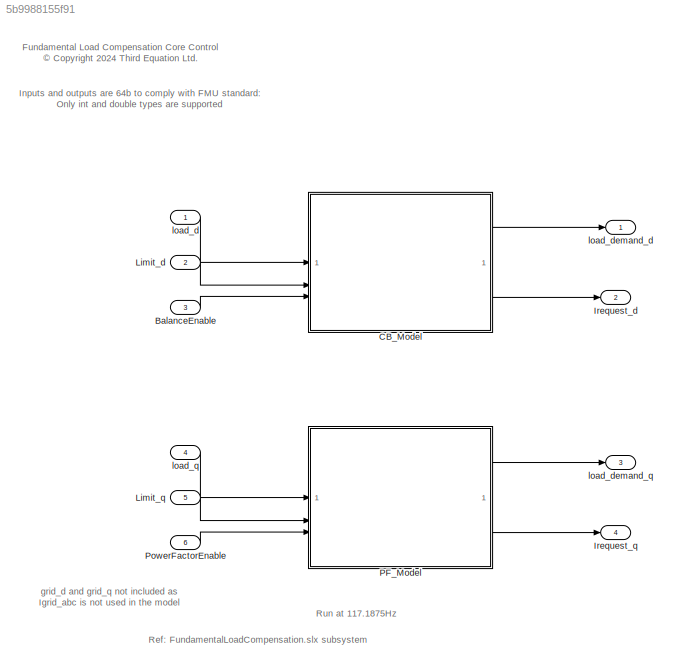
MODEL slx_5b9988155f91
KIND model
BLOCK [Inport] BalanceEnable
  OutDataTypeStr = boolean
  Port = 3
BLOCK [ModelReference] CB_Model
  ModelNameDialog = CB_core_control.slx
  ModelReferenceVersion = 1.44
BLOCK [Outport] Irequest_d
  OutDataTypeStr = single
  Port = 2
BLOCK [Outport] Irequest_q
  OutDataTypeStr = single
  Port = 4
BLOCK [Inport] Limit_d
  OutDataTypeStr = single
  Port = 2
BLOCK [Inport] Limit_q
  OutDataTypeStr = single
  Port = 5
BLOCK [ModelReference] PF_Model
  ModelNameDialog = PF_core_control.slx
  ModelReferenceVersion = 1.43
BLOCK [Inport] PowerFactorEnable
  OutDataTypeStr = boolean
  Port = 6
BLOCK [Inport] load_d
  OutDataTypeStr = single
BLOCK [Outport] load_demand_d
  OutDataTypeStr = single
BLOCK [Outport] load_demand_q
  OutDataTypeStr = single
  Port = 3
BLOCK [Inport] load_q
  OutDataTypeStr = single
  Port = 4
ANNOTATION (root): Fundamental Load Compensation Core Control <copyright redacted>
ANNOTATION (root): Inputs and outputs are 64b to comply with FMU standard: Only int and double types are supported
ANNOTATION (root): Run at 117.1875Hz
ANNOTATION (root): Ref: FundamentalLoadCompensation.slx subsystem
ANNOTATION (root): grid_d and grid_q not included as Igrid_abc is not used in the model
LINE BalanceEnable:1 -> CB_Model:3
LINE CB_Model:1 -> load_demand_d:1
LINE CB_Model:2 -> Irequest_d:1
LINE Limit_d:1 -> CB_Model:2
LINE Limit_q:1 -> PF_Model:2
LINE PF_Model:1 -> load_demand_q:1
LINE PF_Model:2 -> Irequest_q:1
LINE PowerFactorEnable:1 -> PF_Model:3
LINE load_d:1 -> CB_Model:1
LINE load_q:1 -> PF_Model:1
